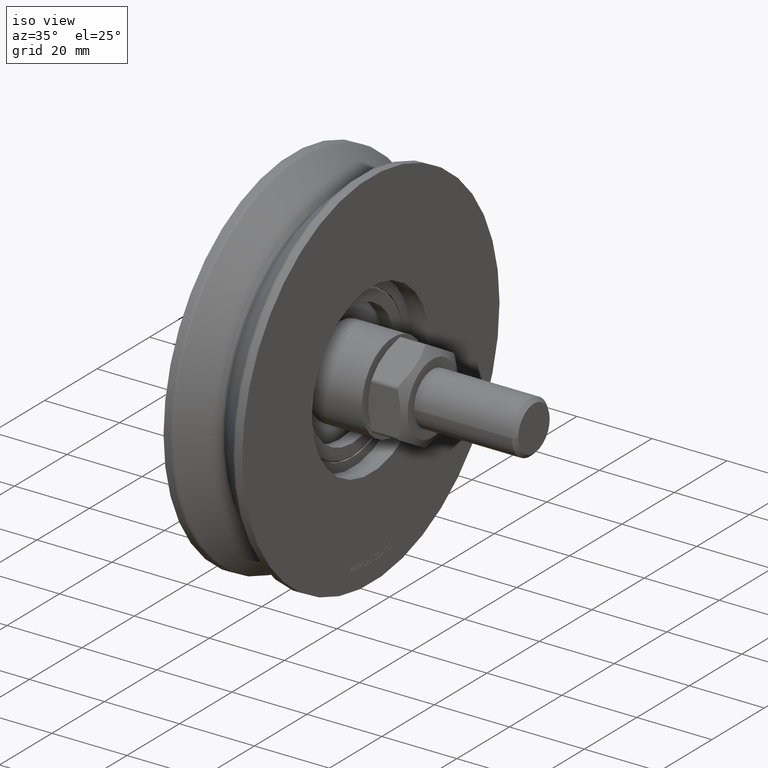
[diagram: clean part render]
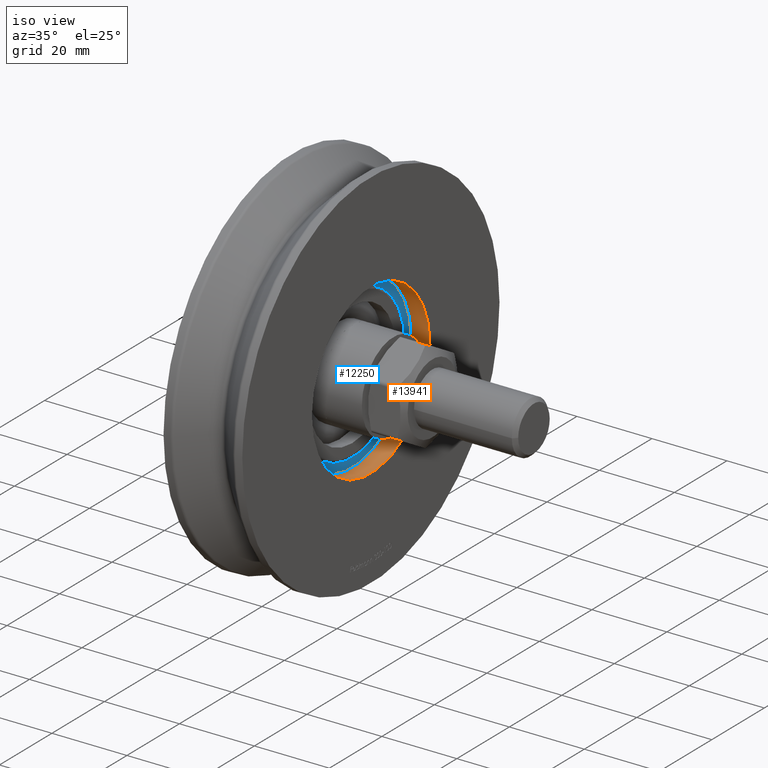
[diagram: same view with the hole feature highlighted: cylindrical wall and planar end face, labeled with their STEP entity ids]
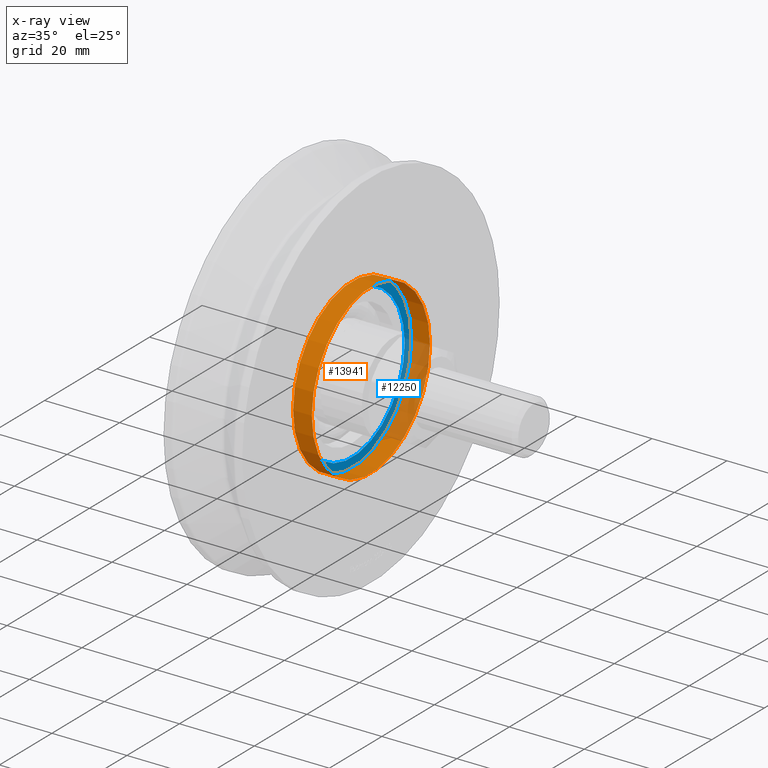
[diagram: x-ray of the same camera — body ghosted, the hole faces saturated]
A machine part, iso view. The highlighted faces form one hole feature of diameter 45 mm: the cylindrical wall (entity #13941, orange) and its adjacent planar end face (entity #12250, blue) — they share a circular edge in the B-rep.
The next image is the same camera in x-ray (body ghosted, the hole faces saturated) — the bore reads through the body.
Wall:
#443 = ORIENTED_EDGE ( 'NONE', *, *, #5997, .T. ) ;
#1949 = DIRECTION ( 'NONE',  ( 0.000000000000000000, 1.000000000000000000, 0.000000000000000000 ) ) ;
#2043 = CARTESIAN_POINT ( 'NONE',  ( 5.500000000000004441, 2.315887324211562651E-15, 0.000000000000000000 ) ) ;
#3028 = CARTESIAN_POINT ( 'NONE',  ( 5.500000000000004441, 22.50000000000000711, 0.000000000000000000 ) ) ;
#3367 = FACE_OUTER_BOUND ( 'NONE', #10865, .T. ) ;
#4367 = CIRCLE ( 'NONE', #11821, 22.50000000000000355 ) ;
#5119 = VERTEX_POINT ( 'NONE', #12036 ) ;
#5523 = EDGE_CURVE ( 'NONE', #8649, #8649, #11545, .T. ) ;
#5997 = EDGE_CURVE ( 'NONE', #5119, #5119, #4367, .T. ) ;
#7923 = DIRECTION ( 'NONE',  ( 1.000000000000000000, -7.134131854262392248E-18, 0.000000000000000000 ) ) ;
#8070 = DIRECTION ( 'NONE',  ( 0.000000000000000000, 1.000000000000000000, 0.000000000000000000 ) ) ;
#8316 = FACE_OUTER_BOUND ( 'NONE', #11047, .T. ) ;
#8649 = VERTEX_POINT ( 'NONE', #3028 ) ;
#8737 = DIRECTION ( 'NONE',  ( 1.000000000000000000, -7.134131854262392248E-18, -0.000000000000000000 ) ) ;
#8897 = CARTESIAN_POINT ( 'NONE',  ( 10.50000000000000355, 2.280216664940250504E-15, 0.000000000000000000 ) ) ;
#9013 = CARTESIAN_POINT ( 'NONE',  ( 5.500000000000004441, 2.315887324211562651E-15, 0.000000000000000000 ) ) ;
#9716 = CYLINDRICAL_SURFACE ( 'NONE', #12431, 22.50000000000000355 ) ;
#9803 = ORIENTED_EDGE ( 'NONE', *, *, #5523, .F. ) ;
#10014 = DIRECTION ( 'NONE',  ( 0.000000000000000000, 1.000000000000000000, 0.000000000000000000 ) ) ;
#10160 = DIRECTION ( 'NONE',  ( 1.000000000000000000, -7.134131854262392248E-18, 0.000000000000000000 ) ) ;
#10865 = EDGE_LOOP ( 'NONE', ( #443 ) ) ;
#11047 = EDGE_LOOP ( 'NONE', ( #9803 ) ) ;
#11545 = CIRCLE ( 'NONE', #11910, 22.50000000000000355 ) ;
#11821 = AXIS2_PLACEMENT_3D ( 'NONE', #8897, #10160, #10014 ) ;
#11910 = AXIS2_PLACEMENT_3D ( 'NONE', #9013, #7923, #8070 ) ;
#12036 = CARTESIAN_POINT ( 'NONE',  ( 10.50000000000000355, 22.50000000000000711, 0.000000000000000000 ) ) ;
#12431 = AXIS2_PLACEMENT_3D ( 'NONE', #2043, #8737, #1949 ) ;
#13941 = ADVANCED_FACE ( 'NONE', ( #8316, #3367 ), #9716, .F. ) ;
End face:
#203 = FACE_OUTER_BOUND ( 'NONE', #2139, .T. ) ;
#1383 = VERTEX_POINT ( 'NONE', #1972 ) ;
#1972 = CARTESIAN_POINT ( 'NONE',  ( 5.500000000000004441, 20.00000000000000000, 0.000000000000000000 ) ) ;
#2139 = EDGE_LOOP ( 'NONE', ( #6640 ) ) ;
#3028 = CARTESIAN_POINT ( 'NONE',  ( 5.500000000000004441, 22.50000000000000711, 0.000000000000000000 ) ) ;
#5163 = FACE_BOUND ( 'NONE', #6175, .T. ) ;
#5468 = CARTESIAN_POINT ( 'NONE',  ( 5.500000000000004441, 2.315887324211562651E-15, 0.000000000000000000 ) ) ;
#5523 = EDGE_CURVE ( 'NONE', #8649, #8649, #11545, .T. ) ;
#6175 = EDGE_LOOP ( 'NONE', ( #8110 ) ) ;
#6280 = AXIS2_PLACEMENT_3D ( 'NONE', #7687, #14379, #10965 ) ;
#6628 = EDGE_CURVE ( 'NONE', #1383, #1383, #12969, .T. ) ;
#6640 = ORIENTED_EDGE ( 'NONE', *, *, #5523, .T. ) ;
#7687 = CARTESIAN_POINT ( 'NONE',  ( 5.500000000000004441, 2.078188507643991791E-15, 0.000000000000000000 ) ) ;
#7923 = DIRECTION ( 'NONE',  ( 1.000000000000000000, -7.134131854262392248E-18, 0.000000000000000000 ) ) ;
#8021 = AXIS2_PLACEMENT_3D ( 'NONE', #5468, #14532, #12200 ) ;
#8070 = DIRECTION ( 'NONE',  ( 0.000000000000000000, 1.000000000000000000, 0.000000000000000000 ) ) ;
#8110 = ORIENTED_EDGE ( 'NONE', *, *, #6628, .F. ) ;
#8649 = VERTEX_POINT ( 'NONE', #3028 ) ;
#9013 = CARTESIAN_POINT ( 'NONE',  ( 5.500000000000004441, 2.315887324211562651E-15, 0.000000000000000000 ) ) ;
#10925 = PLANE ( 'NONE',  #8021 ) ;
#10965 = DIRECTION ( 'NONE',  ( 0.000000000000000000, 1.000000000000000000, 0.000000000000000000 ) ) ;
#11545 = CIRCLE ( 'NONE', #11910, 22.50000000000000355 ) ;
#11910 = AXIS2_PLACEMENT_3D ( 'NONE', #9013, #7923, #8070 ) ;
#12200 = DIRECTION ( 'NONE',  ( 7.134131854262392248E-18, 1.000000000000000000, 0.000000000000000000 ) ) ;
#12250 = ADVANCED_FACE ( 'NONE', ( #5163, #203 ), #10925, .T. ) ;
#12969 = CIRCLE ( 'NONE', #6280, 19.99999999999999645 ) ;
#14379 = DIRECTION ( 'NONE',  ( 1.000000000000000000, -7.134131854262392248E-18, 0.000000000000000000 ) ) ;
#14532 = DIRECTION ( 'NONE',  ( 1.000000000000000000, -7.134131854262392248E-18, 0.000000000000000000 ) ) ;